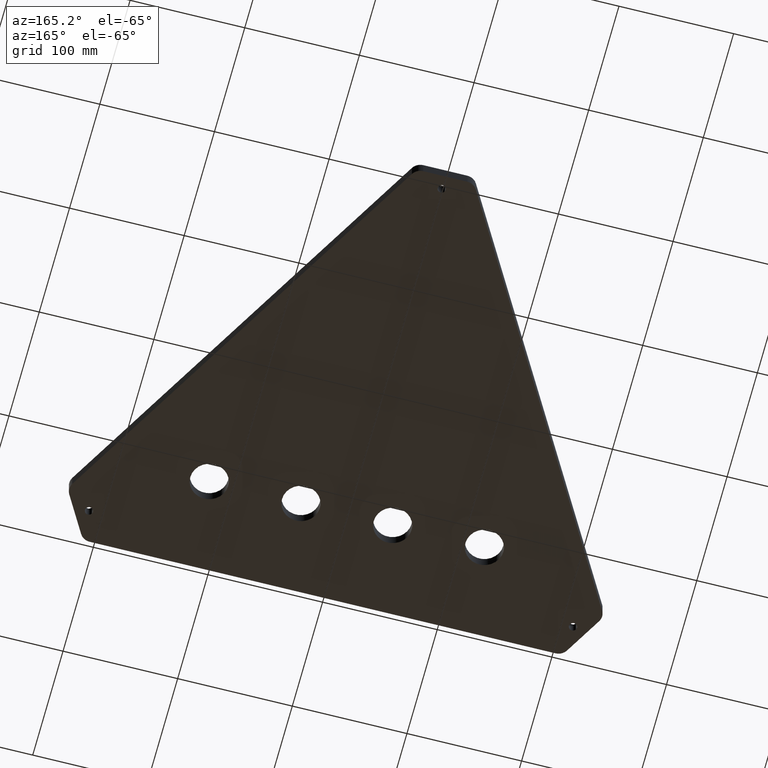
[diagram: clean part render]
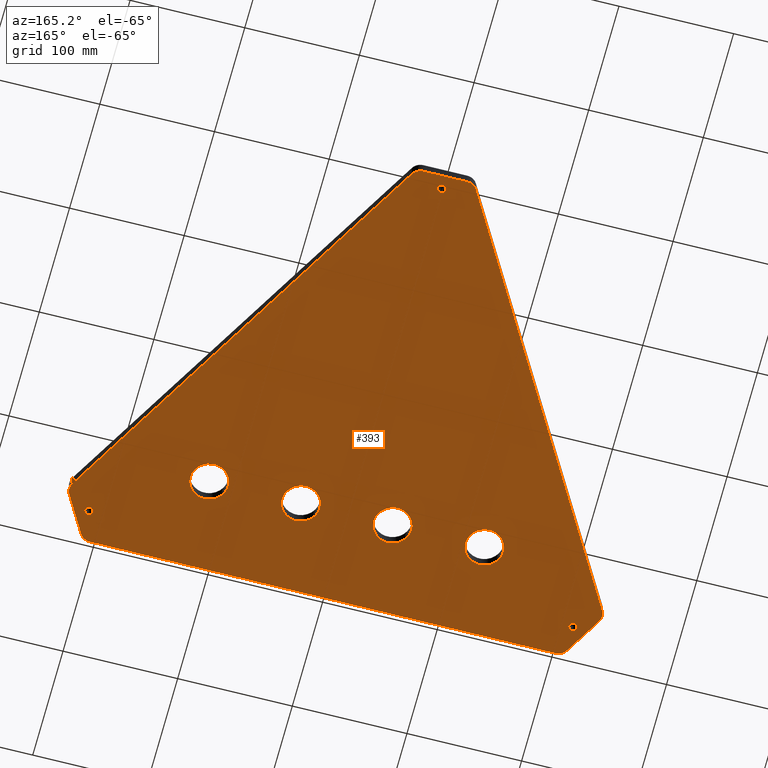
[diagram: same view with one face highlighted and labeled with its STEP entity id]
A machine part, auxiliary view. The second image highlights one B-rep face of the part: STEP entity #393.
In plain terms, the highlighted planar face has unit normal (0, -0, 1).
Its self-contained STEP definition (entity closure, byte-faithful):
#3 = DIRECTION ( 'NONE',  ( 0.5000000000000346400, 0.8660254037844186100, 0.0000000000000000000 ) ) ;
#4 = CARTESIAN_POINT ( 'NONE',  ( 222.4529946162090500, 43.30127018922122800, 0.0000000000000000000 ) ) ;
#10 = EDGE_CURVE ( 'NONE', #550, #568, #975, .T. ) ;
#14 = CARTESIAN_POINT ( 'NONE',  ( -136.4999999999999700, 80.00000000000000000, 0.0000000000000000000 ) ) ;
#15 = CARTESIAN_POINT ( 'NONE',  ( 24.99999999999995400, 405.2998889711154200, 0.0000000000000000000 ) ) ;
#32 = AXIS2_PLACEMENT_3D ( 'NONE', #487, #483, #861 ) ;
#44 = EDGE_CURVE ( 'NONE', #727, #439, #992, .T. ) ;
#49 = CIRCLE ( 'NONE', #955, 3.500000000000004400 ) ;
#56 = CARTESIAN_POINT ( 'NONE',  ( -222.4529946162089400, 43.30127018922117100, 0.0000000000000000000 ) ) ;
#58 = AXIS2_PLACEMENT_3D ( 'NONE', #742, #350, #335 ) ;
#61 = DIRECTION ( 'NONE',  ( 1.000000000000000000, -1.734723475976805500E-015, 0.0000000000000000000 ) ) ;
#66 = DIRECTION ( 'NONE',  ( -0.0000000000000000000, 0.0000000000000000000, -1.000000000000000000 ) ) ;
#69 = FACE_OUTER_BOUND ( 'NONE', #553, .T. ) ;
#73 = CARTESIAN_POINT ( 'NONE',  ( -203.2264973081040000, 10.00000000000003600, 0.0000000000000000000 ) ) ;
#83 = CIRCLE ( 'NONE', #853, 10.00000000000000900 ) ;
#84 = CARTESIAN_POINT ( 'NONE',  ( -211.1076951545877300, 27.65063509461091200, 0.0000000000000000000 ) ) ;
#87 = CARTESIAN_POINT ( 'NONE',  ( -207.6076951545877600, 27.65063509461091200, 0.0000000000000000000 ) ) ;
#89 = LINE ( 'NONE', #15, #104 ) ;
#91 = CIRCLE ( 'NONE', #548, 3.499999999999975100 ) ;
#94 = CARTESIAN_POINT ( 'NONE',  ( 214.6076951545877900, 27.65063509461099000, 0.0000000000000000000 ) ) ;
#95 = DIRECTION ( 'NONE',  ( 1.000000000000000000, 0.0000000000000000000, 0.0000000000000000000 ) ) ;
#100 = CARTESIAN_POINT ( 'NONE',  ( -23.50000000000000000, 80.00000000000000000, 0.0000000000000000000 ) ) ;
#102 = DIRECTION ( 'NONE',  ( -0.0000000000000000000, 0.0000000000000000000, -1.000000000000000000 ) ) ;
#104 = VECTOR ( 'NONE', #119, 1000.000000000000000 ) ;
#111 = FACE_BOUND ( 'NONE', #704, .T. ) ;
#113 = CARTESIAN_POINT ( 'NONE',  ( 120.0000000000000000, 80.00000000000001400, 0.0000000000000000000 ) ) ;
#116 = CIRCLE ( 'NONE', #654, 10.00000000000000900 ) ;
#118 = CIRCLE ( 'NONE', #736, 16.49999999999998600 ) ;
#119 = DIRECTION ( 'NONE',  ( -1.000000000000000000, 0.0000000000000000000, 0.0000000000000000000 ) ) ;
#120 = FACE_BOUND ( 'NONE', #849, .T. ) ;
#121 = CIRCLE ( 'NONE', #988, 9.999999999999998200 ) ;
#123 = EDGE_CURVE ( 'NONE', #213, #472, #796, .T. ) ;
#126 = FACE_BOUND ( 'NONE', #645, .T. ) ;
#128 = CIRCLE ( 'NONE', #617, 10.00000000000000900 ) ;
#130 = CIRCLE ( 'NONE', #410, 10.00000000000000900 ) ;
#136 = DIRECTION ( 'NONE',  ( 1.000000000000000000, 0.0000000000000000000, 0.0000000000000000000 ) ) ;
#140 = FACE_BOUND ( 'NONE', #634, .T. ) ;
#146 = CARTESIAN_POINT ( 'NONE',  ( -3.500000000000002700, 393.2998889711154200, 0.0000000000000000000 ) ) ;
#148 = ORIENTED_EDGE ( 'NONE', *, *, #846, .T. ) ;
#162 = CARTESIAN_POINT ( 'NONE',  ( 208.9999999999999700, 8.957595751706218500E-014, 0.0000000000000000000 ) ) ;
#164 = EDGE_CURVE ( 'NONE', #1003, #913, #799, .T. ) ;
#166 = CIRCLE ( 'NONE', #222, 16.50000000000000700 ) ;
#172 = ORIENTED_EDGE ( 'NONE', *, *, #464, .F. ) ;
#183 = CARTESIAN_POINT ( 'NONE',  ( -103.5000000000000100, 80.00000000000000000, 0.0000000000000000000 ) ) ;
#185 = AXIS2_PLACEMENT_3D ( 'NONE', #538, #552, #576 ) ;
#188 = CIRCLE ( 'NONE', #32, 3.499999999999975100 ) ;
#192 = CARTESIAN_POINT ( 'NONE',  ( -231.1132486540533100, 48.30127018922121400, 0.0000000000000000000 ) ) ;
#193 = CIRCLE ( 'NONE', #58, 16.50000000000000000 ) ;
#194 = CARTESIAN_POINT ( 'NONE',  ( -209.0000000000000300, 3.833983260577668600E-014, 0.0000000000000000000 ) ) ;
#197 = DIRECTION ( 'NONE',  ( 1.000000000000000000, 0.0000000000000000000, -0.0000000000000000000 ) ) ;
#199 = PLANE ( 'NONE',  #406 ) ;
#200 = VERTEX_POINT ( 'NONE', #862 ) ;
#201 = DIRECTION ( 'NONE',  ( 1.000000000000000000, 0.0000000000000000000, 0.0000000000000000000 ) ) ;
#202 = LINE ( 'NONE', #560, #203 ) ;
#203 = VECTOR ( 'NONE', #718, 1000.000000000000100 ) ;
#207 = DIRECTION ( 'NONE',  ( -0.0000000000000000000, 0.0000000000000000000, -1.000000000000000000 ) ) ;
#209 = CARTESIAN_POINT ( 'NONE',  ( 211.1076951545877900, 27.65063509461099000, 0.0000000000000000000 ) ) ;
#213 = VERTEX_POINT ( 'NONE', #183 ) ;
#214 = CIRCLE ( 'NONE', #185, 16.50000000000000000 ) ;
#218 = CARTESIAN_POINT ( 'NONE',  ( 203.2264973081040000, 8.886827353357504600E-014, 0.0000000000000000000 ) ) ;
#222 = AXIS2_PLACEMENT_3D ( 'NONE', #497, #490, #936 ) ;
#236 = DIRECTION ( 'NONE',  ( -0.0000000000000000000, 0.0000000000000000000, -1.000000000000000000 ) ) ;
#259 = VECTOR ( 'NONE', #520, 1000.000000000000000 ) ;
#260 = CARTESIAN_POINT ( 'NONE',  ( 56.50000000000000700, 80.00000000000001400, 0.0000000000000000000 ) ) ;
#262 = CARTESIAN_POINT ( 'NONE',  ( 0.0000000000000000000, 0.0000000000000000000, 0.0000000000000000000 ) ) ;
#265 = CIRCLE ( 'NONE', #551, 16.50000000000000700 ) ;
#271 = CIRCLE ( 'NONE', #386, 3.499999999999975100 ) ;
#279 = VECTOR ( 'NONE', #3, 1000.000000000000200 ) ;
#286 = LINE ( 'NONE', #162, #279 ) ;
#288 = CIRCLE ( 'NONE', #403, 10.00000000000000900 ) ;
#291 = FACE_BOUND ( 'NONE', #692, .T. ) ;
#294 = EDGE_CURVE ( 'NONE', #850, #535, #963, .T. ) ;
#295 = CARTESIAN_POINT ( 'NONE',  ( -203.2264973081040000, 3.904751658926383700E-014, 0.0000000000000000000 ) ) ;
#297 = DIRECTION ( 'NONE',  ( 0.0000000000000000000, -0.0000000000000000000, 1.000000000000000000 ) ) ;
#306 = EDGE_CURVE ( 'NONE', #806, #658, #265, .T. ) ;
#314 = FACE_BOUND ( 'NONE', #597, .T. ) ;
#323 = CIRCLE ( 'NONE', #787, 9.999999999999996400 ) ;
#329 = AXIS2_PLACEMENT_3D ( 'NONE', #113, #102, #95 ) ;
#335 = DIRECTION ( 'NONE',  ( 1.000000000000000000, 0.0000000000000000000, 0.0000000000000000000 ) ) ;
#336 = EDGE_CURVE ( 'NONE', #594, #619, #454, .T. ) ;
#344 = DIRECTION ( 'NONE',  ( -0.0000000000000000000, 0.0000000000000000000, -1.000000000000000000 ) ) ;
#349 = DIRECTION ( 'NONE',  ( 1.000000000000000000, 0.0000000000000000000, 0.0000000000000000000 ) ) ;
#350 = DIRECTION ( 'NONE',  ( -0.0000000000000000000, 0.0000000000000000000, -1.000000000000000000 ) ) ;
#354 = DIRECTION ( 'NONE',  ( -0.0000000000000000000, 0.0000000000000000000, -1.000000000000000000 ) ) ;
#358 = ORIENTED_EDGE ( 'NONE', *, *, #612, .F. ) ;
#369 = ORIENTED_EDGE ( 'NONE', *, *, #690, .F. ) ;
#372 = AXIS2_PLACEMENT_3D ( 'NONE', #631, #236, #398 ) ;
#386 = AXIS2_PLACEMENT_3D ( 'NONE', #209, #207, #201 ) ;
#387 = CARTESIAN_POINT ( 'NONE',  ( 211.1076951545877900, 27.65063509461099000, 0.0000000000000000000 ) ) ;
#393 = ADVANCED_FACE ( 'NONE', ( #314, #126, #140, #458, #291, #120, #111, #69 ), #199, .F. ) ;
#398 = DIRECTION ( 'NONE',  ( 1.000000000000000000, 0.0000000000000000000, 0.0000000000000000000 ) ) ;
#401 = CARTESIAN_POINT ( 'NONE',  ( -56.50000000000000000, 80.00000000000000000, 0.0000000000000000000 ) ) ;
#403 = AXIS2_PLACEMENT_3D ( 'NONE', #588, #885, #519 ) ;
#406 = AXIS2_PLACEMENT_3D ( 'NONE', #262, #297, #197 ) ;
#407 = VECTOR ( 'NONE', #832, 1000.000000000000000 ) ;
#410 = AXIS2_PLACEMENT_3D ( 'NONE', #56, #825, #836 ) ;
#417 = CARTESIAN_POINT ( 'NONE',  ( 23.49999999999999300, 80.00000000000001400, 0.0000000000000000000 ) ) ;
#419 = ORIENTED_EDGE ( 'NONE', *, *, #928, .F. ) ;
#421 = VERTEX_POINT ( 'NONE', #87 ) ;
#424 = ORIENTED_EDGE ( 'NONE', *, *, #164, .F. ) ;
#425 = CARTESIAN_POINT ( 'NONE',  ( -234.0000000000015900, 43.30127018922097900, 0.0000000000000000000 ) ) ;
#436 = DIRECTION ( 'NONE',  ( 1.000000000000000000, 0.0000000000000000000, 0.0000000000000000000 ) ) ;
#437 = VERTEX_POINT ( 'NONE', #100 ) ;
#439 = VERTEX_POINT ( 'NONE', #94 ) ;
#440 = DIRECTION ( 'NONE',  ( -0.5000000000000036600, -0.8660254037844366000, -0.0000000000000000000 ) ) ;
#442 = DIRECTION ( 'NONE',  ( -0.0000000000000000000, 0.0000000000000000000, -1.000000000000000000 ) ) ;
#449 = ORIENTED_EDGE ( 'NONE', *, *, #837, .T. ) ;
#454 = LINE ( 'NONE', #425, #455 ) ;
#455 = VECTOR ( 'NONE', #440, 1000.000000000000100 ) ;
#456 = DIRECTION ( 'NONE',  ( 1.000000000000000000, 0.0000000000000000000, 0.0000000000000000000 ) ) ;
#458 = FACE_BOUND ( 'NONE', #1031, .T. ) ;
#459 = DIRECTION ( 'NONE',  ( -0.0000000000000000000, 0.0000000000000000000, -1.000000000000000000 ) ) ;
#464 = EDGE_CURVE ( 'NONE', #547, #773, #286, .T. ) ;
#466 = DIRECTION ( 'NONE',  ( 1.000000000000000000, 1.110223024625157000E-014, 0.0000000000000000000 ) ) ;
#470 = EDGE_CURVE ( 'NONE', #547, #913, #288, .T. ) ;
#471 = VERTEX_POINT ( 'NONE', #600 ) ;
#472 = VERTEX_POINT ( 'NONE', #14 ) ;
#478 = CARTESIAN_POINT ( 'NONE',  ( 19.22649730810367400, 405.2998889711154200, 0.0000000000000000000 ) ) ;
#483 = DIRECTION ( 'NONE',  ( -0.0000000000000000000, 0.0000000000000000000, -1.000000000000000000 ) ) ;
#484 = ORIENTED_EDGE ( 'NONE', *, *, #929, .T. ) ;
#487 = CARTESIAN_POINT ( 'NONE',  ( -211.1076951545877300, 27.65063509461091200, 0.0000000000000000000 ) ) ;
#490 = DIRECTION ( 'NONE',  ( -0.0000000000000000000, 0.0000000000000000000, -1.000000000000000000 ) ) ;
#493 = CARTESIAN_POINT ( 'NONE',  ( 40.00000000000000000, 80.00000000000001400, 0.0000000000000000000 ) ) ;
#497 = CARTESIAN_POINT ( 'NONE',  ( 40.00000000000000000, 80.00000000000001400, 0.0000000000000000000 ) ) ;
#498 = VERTEX_POINT ( 'NONE', #970 ) ;
#503 = ORIENTED_EDGE ( 'NONE', *, *, #10, .F. ) ;
#506 = VERTEX_POINT ( 'NONE', #899 ) ;
#507 = CARTESIAN_POINT ( 'NONE',  ( -120.0000000000000000, 80.00000000000000000, 0.0000000000000000000 ) ) ;
#508 = ORIENTED_EDGE ( 'NONE', *, *, #962, .F. ) ;
#517 = CARTESIAN_POINT ( 'NONE',  ( -27.88675134594825900, 400.2998889711154200, 0.0000000000000000000 ) ) ;
#518 = DIRECTION ( 'NONE',  ( 1.000000000000000000, 0.0000000000000000000, 0.0000000000000000000 ) ) ;
#519 = DIRECTION ( 'NONE',  ( 1.000000000000000000, 1.734723475976805500E-015, 0.0000000000000000000 ) ) ;
#520 = DIRECTION ( 'NONE',  ( 0.5000000000000322000, -0.8660254037844200600, -0.0000000000000000000 ) ) ;
#522 = CARTESIAN_POINT ( 'NONE',  ( -231.1132486540531400, 38.30127018922085100, 0.0000000000000000000 ) ) ;
#523 = DIRECTION ( 'NONE',  ( -0.0000000000000000000, 0.0000000000000000000, -1.000000000000000000 ) ) ;
#525 = CARTESIAN_POINT ( 'NONE',  ( -209.0000000000000300, 3.833983260577668600E-014, 0.0000000000000000000 ) ) ;
#526 = CARTESIAN_POINT ( 'NONE',  ( -19.22649730810385500, 395.2998889711153700, 0.0000000000000000000 ) ) ;
#535 = VERTEX_POINT ( 'NONE', #967 ) ;
#538 = CARTESIAN_POINT ( 'NONE',  ( -40.00000000000000000, 80.00000000000000000, 0.0000000000000000000 ) ) ;
#546 = ORIENTED_EDGE ( 'NONE', *, *, #822, .T. ) ;
#547 = VERTEX_POINT ( 'NONE', #886 ) ;
#548 = AXIS2_PLACEMENT_3D ( 'NONE', #84, #582, #571 ) ;
#550 = VERTEX_POINT ( 'NONE', #834 ) ;
#551 = AXIS2_PLACEMENT_3D ( 'NONE', #493, #459, #456 ) ;
#552 = DIRECTION ( 'NONE',  ( -0.0000000000000000000, 0.0000000000000000000, -1.000000000000000000 ) ) ;
#553 = EDGE_LOOP ( 'NONE', ( #424, #546, #726, #148, #449, #1006, #817, #607, #902, #369, #484, #172, #626 ) ) ;
#555 = VERTEX_POINT ( 'NONE', #818 ) ;
#558 = DIRECTION ( 'NONE',  ( -0.0000000000000000000, 0.0000000000000000000, -1.000000000000000000 ) ) ;
#560 = CARTESIAN_POINT ( 'NONE',  ( 234.0000000000017100, 43.30127018922103600, 0.0000000000000000000 ) ) ;
#568 = VERTEX_POINT ( 'NONE', #683 ) ;
#571 = DIRECTION ( 'NONE',  ( 1.000000000000000000, 0.0000000000000000000, 0.0000000000000000000 ) ) ;
#576 = DIRECTION ( 'NONE',  ( 1.000000000000000000, 0.0000000000000000000, 0.0000000000000000000 ) ) ;
#582 = DIRECTION ( 'NONE',  ( -0.0000000000000000000, 0.0000000000000000000, -1.000000000000000000 ) ) ;
#585 = ORIENTED_EDGE ( 'NONE', *, *, #737, .F. ) ;
#586 = DIRECTION ( 'NONE',  ( 1.000000000000000000, 0.0000000000000000000, 0.0000000000000000000 ) ) ;
#588 = CARTESIAN_POINT ( 'NONE',  ( 203.2264973081040000, 10.00000000000008500, 0.0000000000000000000 ) ) ;
#594 = VERTEX_POINT ( 'NONE', #517 ) ;
#597 = EDGE_LOOP ( 'NONE', ( #503, #358 ) ) ;
#600 = CARTESIAN_POINT ( 'NONE',  ( 231.1132486540534200, 48.30127018922127000, 0.0000000000000000000 ) ) ;
#601 = ORIENTED_EDGE ( 'NONE', *, *, #306, .F. ) ;
#605 = EDGE_CURVE ( 'NONE', #439, #727, #271, .T. ) ;
#607 = ORIENTED_EDGE ( 'NONE', *, *, #919, .F. ) ;
#612 = EDGE_CURVE ( 'NONE', #568, #550, #835, .T. ) ;
#617 = AXIS2_PLACEMENT_3D ( 'NONE', #73, #66, #61 ) ;
#619 = VERTEX_POINT ( 'NONE', #192 ) ;
#626 = ORIENTED_EDGE ( 'NONE', *, *, #470, .T. ) ;
#627 = CARTESIAN_POINT ( 'NONE',  ( 120.0000000000000000, 80.00000000000001400, 0.0000000000000000000 ) ) ;
#630 = VERTEX_POINT ( 'NONE', #478 ) ;
#631 = CARTESIAN_POINT ( 'NONE',  ( 1.575633682849302900E-015, 393.2998889711154200, 0.0000000000000000000 ) ) ;
#634 = EDGE_LOOP ( 'NONE', ( #601, #1002 ) ) ;
#645 = EDGE_LOOP ( 'NONE', ( #937, #419 ) ) ;
#653 = DIRECTION ( 'NONE',  ( -0.0000000000000000000, 0.0000000000000000000, -1.000000000000000000 ) ) ;
#654 = AXIS2_PLACEMENT_3D ( 'NONE', #769, #983, #980 ) ;
#658 = VERTEX_POINT ( 'NONE', #417 ) ;
#659 = CARTESIAN_POINT ( 'NONE',  ( 1.575633682849302900E-015, 393.2998889711154200, 0.0000000000000000000 ) ) ;
#672 = ORIENTED_EDGE ( 'NONE', *, *, #674, .F. ) ;
#674 = EDGE_CURVE ( 'NONE', #717, #437, #214, .T. ) ;
#675 = CARTESIAN_POINT ( 'NONE',  ( -120.0000000000000000, 80.00000000000000000, 0.0000000000000000000 ) ) ;
#683 = CARTESIAN_POINT ( 'NONE',  ( 103.4999999999999900, 80.00000000000001400, 0.0000000000000000000 ) ) ;
#690 = EDGE_CURVE ( 'NONE', #471, #498, #202, .T. ) ;
#692 = EDGE_LOOP ( 'NONE', ( #777, #707 ) ) ;
#704 = EDGE_LOOP ( 'NONE', ( #1009, #1007 ) ) ;
#707 = ORIENTED_EDGE ( 'NONE', *, *, #768, .F. ) ;
#717 = VERTEX_POINT ( 'NONE', #401 ) ;
#718 = DIRECTION ( 'NONE',  ( -0.5000000000000041100, 0.8660254037844362700, 0.0000000000000000000 ) ) ;
#726 = ORIENTED_EDGE ( 'NONE', *, *, #294, .F. ) ;
#727 = VERTEX_POINT ( 'NONE', #914 ) ;
#736 = AXIS2_PLACEMENT_3D ( 'NONE', #507, #442, #436 ) ;
#737 = EDGE_CURVE ( 'NONE', #437, #717, #193, .T. ) ;
#742 = CARTESIAN_POINT ( 'NONE',  ( -40.00000000000000000, 80.00000000000000000, 0.0000000000000000000 ) ) ;
#744 = EDGE_CURVE ( 'NONE', #658, #806, #166, .T. ) ;
#768 = EDGE_CURVE ( 'NONE', #781, #421, #188, .T. ) ;
#769 = CARTESIAN_POINT ( 'NONE',  ( -222.4529946162089400, 43.30127018922117100, 0.0000000000000000000 ) ) ;
#773 = VERTEX_POINT ( 'NONE', #917 ) ;
#777 = ORIENTED_EDGE ( 'NONE', *, *, #921, .F. ) ;
#781 = VERTEX_POINT ( 'NONE', #847 ) ;
#787 = AXIS2_PLACEMENT_3D ( 'NONE', #526, #523, #466 ) ;
#796 = CIRCLE ( 'NONE', #821, 16.49999999999998600 ) ;
#799 = LINE ( 'NONE', #194, #407 ) ;
#806 = VERTEX_POINT ( 'NONE', #260 ) ;
#817 = ORIENTED_EDGE ( 'NONE', *, *, #872, .T. ) ;
#818 = CARTESIAN_POINT ( 'NONE',  ( -232.4529946162089400, 43.30127018922117100, 0.0000000000000000000 ) ) ;
#820 = VERTEX_POINT ( 'NONE', #146 ) ;
#821 = AXIS2_PLACEMENT_3D ( 'NONE', #675, #558, #518 ) ;
#822 = EDGE_CURVE ( 'NONE', #1003, #535, #128, .T. ) ;
#824 = AXIS2_PLACEMENT_3D ( 'NONE', #387, #354, #349 ) ;
#825 = DIRECTION ( 'NONE',  ( -0.0000000000000000000, 0.0000000000000000000, -1.000000000000000000 ) ) ;
#828 = AXIS2_PLACEMENT_3D ( 'NONE', #627, #344, #136 ) ;
#832 = DIRECTION ( 'NONE',  ( 1.000000000000000000, 1.225744615102523800E-016, 0.0000000000000000000 ) ) ;
#833 = DIRECTION ( 'NONE',  ( 1.000000000000000000, 1.110223024625156700E-014, 0.0000000000000000000 ) ) ;
#834 = CARTESIAN_POINT ( 'NONE',  ( 136.5000000000000000, 80.00000000000001400, 0.0000000000000000000 ) ) ;
#835 = CIRCLE ( 'NONE', #329, 16.50000000000001400 ) ;
#836 = DIRECTION ( 'NONE',  ( 1.000000000000000000, 8.326672684688666200E-015, 0.0000000000000000000 ) ) ;
#837 = EDGE_CURVE ( 'NONE', #555, #619, #130, .T. ) ;
#838 = DIRECTION ( 'NONE',  ( -0.0000000000000000000, 0.0000000000000000000, -1.000000000000000000 ) ) ;
#841 = CIRCLE ( 'NONE', #372, 3.500000000000004400 ) ;
#846 = EDGE_CURVE ( 'NONE', #850, #555, #116, .T. ) ;
#847 = CARTESIAN_POINT ( 'NONE',  ( -214.6076951545877300, 27.65063509461091200, 0.0000000000000000000 ) ) ;
#849 = EDGE_LOOP ( 'NONE', ( #978, #508 ) ) ;
#850 = VERTEX_POINT ( 'NONE', #522 ) ;
#853 = AXIS2_PLACEMENT_3D ( 'NONE', #4, #1029, #1024 ) ;
#858 = EDGE_CURVE ( 'NONE', #630, #498, #121, .T. ) ;
#861 = DIRECTION ( 'NONE',  ( 1.000000000000000000, 0.0000000000000000000, 0.0000000000000000000 ) ) ;
#862 = CARTESIAN_POINT ( 'NONE',  ( -19.22649730810385500, 405.2998889711154200, 0.0000000000000000000 ) ) ;
#872 = EDGE_CURVE ( 'NONE', #594, #200, #323, .T. ) ;
#885 = DIRECTION ( 'NONE',  ( -0.0000000000000000000, 0.0000000000000000000, -1.000000000000000000 ) ) ;
#886 = CARTESIAN_POINT ( 'NONE',  ( 211.8867513459481700, 4.999999999999755800, 0.0000000000000000000 ) ) ;
#899 = CARTESIAN_POINT ( 'NONE',  ( 3.500000000000006200, 393.2998889711154200, 0.0000000000000000000 ) ) ;
#902 = ORIENTED_EDGE ( 'NONE', *, *, #858, .T. ) ;
#903 = CARTESIAN_POINT ( 'NONE',  ( 19.22649730810367400, 395.2998889711154200, 0.0000000000000000000 ) ) ;
#913 = VERTEX_POINT ( 'NONE', #218 ) ;
#914 = CARTESIAN_POINT ( 'NONE',  ( 207.6076951545878200, 27.65063509461099000, 0.0000000000000000000 ) ) ;
#917 = CARTESIAN_POINT ( 'NONE',  ( 231.1132486540532200, 38.30127018922088000, 0.0000000000000000000 ) ) ;
#919 = EDGE_CURVE ( 'NONE', #630, #200, #89, .T. ) ;
#921 = EDGE_CURVE ( 'NONE', #421, #781, #91, .T. ) ;
#928 = EDGE_CURVE ( 'NONE', #472, #213, #118, .T. ) ;
#929 = EDGE_CURVE ( 'NONE', #471, #773, #83, .T. ) ;
#936 = DIRECTION ( 'NONE',  ( 1.000000000000000000, 0.0000000000000000000, 0.0000000000000000000 ) ) ;
#937 = ORIENTED_EDGE ( 'NONE', *, *, #123, .F. ) ;
#955 = AXIS2_PLACEMENT_3D ( 'NONE', #659, #653, #586 ) ;
#962 = EDGE_CURVE ( 'NONE', #820, #506, #49, .T. ) ;
#963 = LINE ( 'NONE', #525, #259 ) ;
#967 = CARTESIAN_POINT ( 'NONE',  ( -211.8867513459482000, 4.999999999999701600, 0.0000000000000000000 ) ) ;
#970 = CARTESIAN_POINT ( 'NONE',  ( 27.88675134594812000, 400.2998889711154200, 0.0000000000000000000 ) ) ;
#975 = CIRCLE ( 'NONE', #828, 16.50000000000001400 ) ;
#978 = ORIENTED_EDGE ( 'NONE', *, *, #1028, .F. ) ;
#980 = DIRECTION ( 'NONE',  ( 1.000000000000000000, 2.775557561562889000E-015, 0.0000000000000000000 ) ) ;
#983 = DIRECTION ( 'NONE',  ( -0.0000000000000000000, 0.0000000000000000000, -1.000000000000000000 ) ) ;
#988 = AXIS2_PLACEMENT_3D ( 'NONE', #903, #838, #833 ) ;
#992 = CIRCLE ( 'NONE', #824, 3.499999999999975100 ) ;
#1002 = ORIENTED_EDGE ( 'NONE', *, *, #744, .F. ) ;
#1003 = VERTEX_POINT ( 'NONE', #295 ) ;
#1006 = ORIENTED_EDGE ( 'NONE', *, *, #336, .F. ) ;
#1007 = ORIENTED_EDGE ( 'NONE', *, *, #44, .F. ) ;
#1009 = ORIENTED_EDGE ( 'NONE', *, *, #605, .F. ) ;
#1024 = DIRECTION ( 'NONE',  ( 1.000000000000000000, 0.0000000000000000000, 0.0000000000000000000 ) ) ;
#1028 = EDGE_CURVE ( 'NONE', #506, #820, #841, .T. ) ;
#1029 = DIRECTION ( 'NONE',  ( -0.0000000000000000000, 0.0000000000000000000, -1.000000000000000000 ) ) ;
#1031 = EDGE_LOOP ( 'NONE', ( #585, #672 ) ) ;